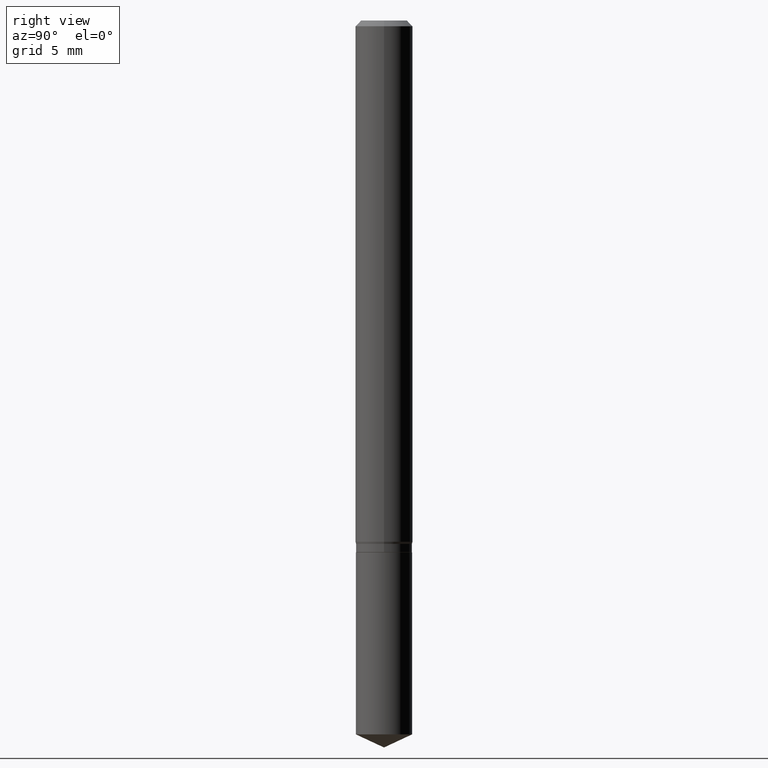
[diagram: clean part render]
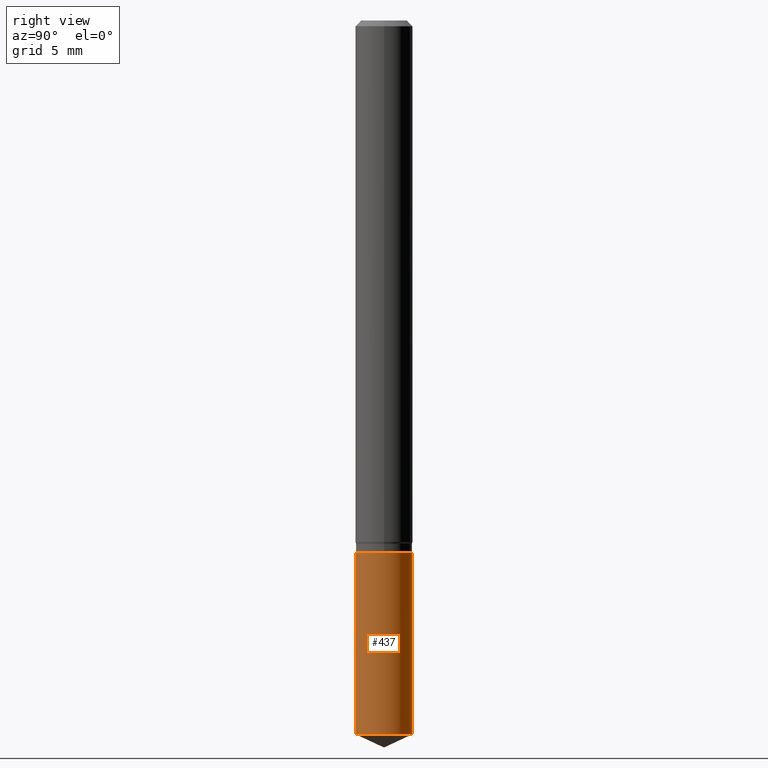
[diagram: same view with one face highlighted and labeled with its STEP entity id]
A machine part, right view. The second image highlights one B-rep face of the part: STEP entity #437.
In plain terms, the highlighted cylindrical surface (edge-blend (fillet) strip) has radius 1.4694 mm, axis along (-0, 0, 1).
Its self-contained STEP definition (entity closure, byte-faithful):
#15 = EDGE_CURVE ( 'NONE', #142, #489, #448, .T. ) ;
#26 = AXIS2_PLACEMENT_3D ( 'NONE', #419, #83, #241 ) ;
#35 = DIRECTION ( 'NONE',  ( -6.982962677686265922E-15, -1.000000000000000000, 2.361147790548196524E-15 ) ) ;
#72 = DIRECTION ( 'NONE',  ( -2.445458899330790108E-29, 3.491495526022433599E-15, 1.000000000000000000 ) ) ;
#73 = VECTOR ( 'NONE', #263, 39.37007874015748143 ) ;
#81 = FACE_OUTER_BOUND ( 'NONE', #469, .T. ) ;
#83 = DIRECTION ( 'NONE',  ( -2.445458899330790108E-29, 3.491495526022433205E-15, 1.000000000000000000 ) ) ;
#105 = VERTEX_POINT ( 'NONE', #432 ) ;
#109 = CARTESIAN_POINT ( 'NONE',  ( -4.039643909041237478E-16, -0.05785000000000382198, -1.094499999999999806 ) ) ;
#142 = VERTEX_POINT ( 'NONE', #421 ) ;
#147 = CARTESIAN_POINT ( 'NONE',  ( 2.676565608369631794E-29, -3.821426325363822773E-15, -1.094499999999999806 ) ) ;
#150 = AXIS2_PLACEMENT_3D ( 'NONE', #147, #196, #35 ) ;
#157 = ORIENTED_EDGE ( 'NONE', *, *, #15, .F. ) ;
#165 = CARTESIAN_POINT ( 'NONE',  ( 4.110489726372537918E-16, 0.05784999999999485693, -1.469124101975733732 ) ) ;
#196 = DIRECTION ( 'NONE',  ( -2.445458899330790108E-29, 3.491495526022433205E-15, 1.000000000000000000 ) ) ;
#199 = ORIENTED_EDGE ( 'NONE', *, *, #312, .F. ) ;
#212 = AXIS2_PLACEMENT_3D ( 'NONE', #298, #257, #218 ) ;
#218 = DIRECTION ( 'NONE',  ( -6.982962677686265922E-15, -1.000000000000000000, 4.722295581096393049E-15 ) ) ;
#237 = EDGE_CURVE ( 'NONE', #142, #439, #416, .T. ) ;
#238 = CYLINDRICAL_SURFACE ( 'NONE', #26, 0.05784999999999999865 ) ;
#241 = DIRECTION ( 'NONE',  ( -6.982962677686265922E-15, -1.000000000000000000, 2.361147790548196524E-15 ) ) ;
#257 = DIRECTION ( 'NONE',  ( -2.445458899330790108E-29, 3.491495526022433205E-15, 1.000000000000000000 ) ) ;
#263 = DIRECTION ( 'NONE',  ( -2.445458899330790108E-29, 3.491495526022433599E-15, 1.000000000000000000 ) ) ;
#270 = LINE ( 'NONE', #410, #485 ) ;
#289 = EDGE_CURVE ( 'NONE', #439, #105, #270, .T. ) ;
#298 = CARTESIAN_POINT ( 'NONE',  ( 3.592693452449994614E-29, -5.129424701352268102E-15, -1.469124101975733288 ) ) ;
#312 = EDGE_CURVE ( 'NONE', #489, #105, #461, .T. ) ;
#339 = ORIENTED_EDGE ( 'NONE', *, *, #237, .T. ) ;
#410 = CARTESIAN_POINT ( 'NONE',  ( 4.110489726372446213E-16, 0.05784999999999617531, -1.094500000000000028 ) ) ;
#416 = CIRCLE ( 'NONE', #212, 0.05784999999999999865 ) ;
#419 = CARTESIAN_POINT ( 'NONE',  ( 2.676565608369631794E-29, -3.821426325363822773E-15, -1.094499999999999806 ) ) ;
#421 = CARTESIAN_POINT ( 'NONE',  ( -4.039643909041145280E-16, -0.05785000000000512649, -1.469124101975733065 ) ) ;
#422 = ORIENTED_EDGE ( 'NONE', *, *, #289, .T. ) ;
#432 = CARTESIAN_POINT ( 'NONE',  ( 4.110489726372538411E-16, 0.05784999999999617531, -1.094500000000000028 ) ) ;
#437 = ADVANCED_FACE ( 'NONE', ( #81 ), #238, .T. ) ;
#439 = VERTEX_POINT ( 'NONE', #165 ) ;
#448 = LINE ( 'NONE', #109, #73 ) ;
#461 = CIRCLE ( 'NONE', #150, 0.05784999999999999865 ) ;
#469 = EDGE_LOOP ( 'NONE', ( #339, #422, #199, #157 ) ) ;
#478 = CARTESIAN_POINT ( 'NONE',  ( -4.039643909041237478E-16, -0.05785000000000382198, -1.094499999999999806 ) ) ;
#485 = VECTOR ( 'NONE', #72, 39.37007874015748143 ) ;
#489 = VERTEX_POINT ( 'NONE', #478 ) ;